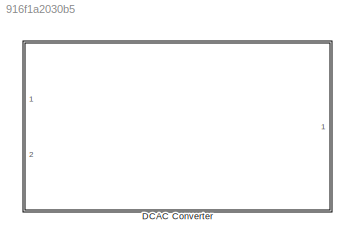
MODEL slx_916f1a2030b5
KIND library
CONFIG AbsTol = auto
CONFIG EnableMultiTasking = off
CONFIG FixedStep = auto
CONFIG MaxStep = auto
CONFIG MinStep = auto
CONFIG RelTol = 1e-3
CONFIG SampleTimeConstraint = Unconstrained
CONFIG Solver = VariableStepAuto
CONFIG SolverName = VariableStepAuto
CONFIG StartTime = 0.0
CONFIG StopTime = 10.0
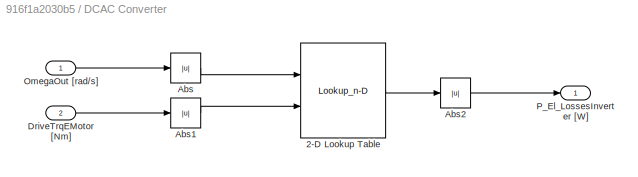
BLOCK [SubSystem] DCAC Converter
  Ports = [2, 1]
  RequestExecContextInheritance = off
BLOCK [Lookup_n-D] DCAC Converter/2-D Lookup Table
  BreakpointsForDimension1 = W_Vektor
  BreakpointsForDimension2 = M_Vektor_motgen
  InternalRulePriority = Speed
  Ports = [2, 1]
  RndMeth = Simplest
  Table = P_Loss
BLOCK [Abs] DCAC Converter/Abs
  SaturateOnIntegerOverflow = off
BLOCK [Abs] DCAC Converter/Abs1
  SaturateOnIntegerOverflow = off
BLOCK [Abs] DCAC Converter/Abs2
  SaturateOnIntegerOverflow = off
BLOCK [Inport] DCAC Converter/DriveTrqEMotor [Nm]
  IconDisplay = Port number
  Port = 2
  SampleTime = LocalSampleTime
BLOCK [Inport] DCAC Converter/OmegaOut [rad//s]
  IconDisplay = Port number
  SampleTime = LocalSampleTime
BLOCK [Outport] DCAC Converter/P_El_LossesInverter [W]
  IconDisplay = Port number
  SampleTime = GlobalSampleTime
LINE DCAC Converter/2-D Lookup Table:1 -> DCAC Converter/Abs2:1
LINE DCAC Converter/Abs1:1 -> DCAC Converter/2-D Lookup Table:2
LINE DCAC Converter/Abs2:1 -> DCAC Converter/P_El_LossesInverter [W]:1
LINE DCAC Converter/Abs:1 -> DCAC Converter/2-D Lookup Table:1
LINE DCAC Converter/DriveTrqEMotor [Nm]:1 -> DCAC Converter/Abs1:1
LINE DCAC Converter/OmegaOut [rad//s]:1 -> DCAC Converter/Abs:1
